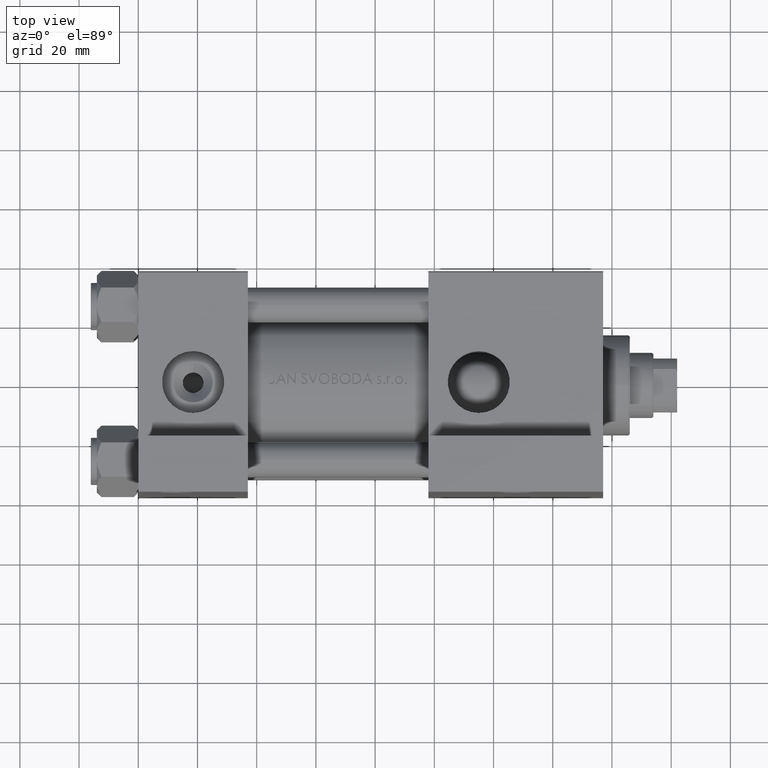
[diagram: clean part render]
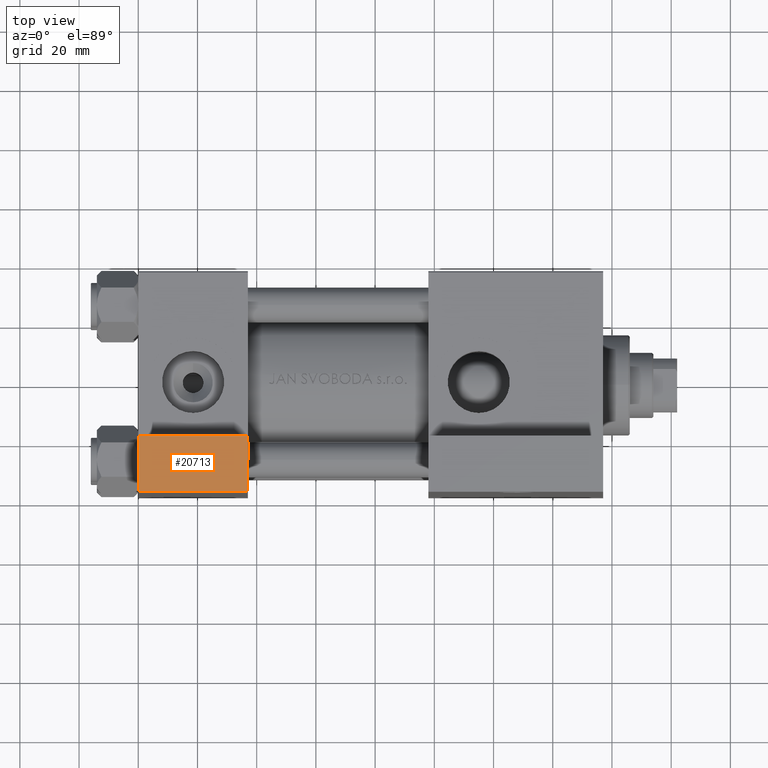
[diagram: same view with one face highlighted and labeled with its STEP entity id]
A machine part, top view. The second image highlights one B-rep face of the part: STEP entity #20713.
In plain terms, the highlighted planar face has unit normal (0, 0, 1).
Its self-contained STEP definition (entity closure, byte-faithful):
#798 = DIRECTION ( 'NONE',  ( 0.000000000000000000, -1.734723475976806848E-16, -1.000000000000000000 ) ) ;
#846 = AXIS2_PLACEMENT_3D ( 'NONE', #10742, #22199, #11649 ) ;
#1255 = EDGE_CURVE ( 'NONE', #14878, #4219, #13104, .T. ) ;
#3381 = LINE ( 'NONE', #48949, #47137 ) ;
#4219 = VERTEX_POINT ( 'NONE', #40751 ) ;
#7646 = EDGE_CURVE ( 'NONE', #4219, #17229, #26976, .T. ) ;
#7763 = CARTESIAN_POINT ( 'NONE',  ( 3.977209754999747208E-16, -63.50000000000000000, -18.50000000000000355 ) ) ;
#10742 = CARTESIAN_POINT ( 'NONE',  ( 3.977209754999747208E-16, -63.49999999999998579, 26.72167621838007889 ) ) ;
#11649 = DIRECTION ( 'NONE',  ( 0.000000000000000000, -1.734723475976806848E-16, -1.000000000000000000 ) ) ;
#13104 = LINE ( 'NONE', #26247, #16549 ) ;
#13822 = DIRECTION ( 'NONE',  ( 0.000000000000000000, -1.734723475976806848E-16, -1.000000000000000000 ) ) ;
#14406 = ORIENTED_EDGE ( 'NONE', *, *, #1255, .F. ) ;
#14731 = FACE_OUTER_BOUND ( 'NONE', #17283, .T. ) ;
#14878 = VERTEX_POINT ( 'NONE', #7763 ) ;
#16549 = VECTOR ( 'NONE', #41412, 1000.000000000000000 ) ;
#17229 = VERTEX_POINT ( 'NONE', #36997 ) ;
#17283 = EDGE_LOOP ( 'NONE', ( #14406, #47723, #45447, #31879 ) ) ;
#18075 = LINE ( 'NONE', #26057, #39754 ) ;
#19840 = EDGE_CURVE ( 'NONE', #17229, #22416, #18075, .T. ) ;
#20713 = ADVANCED_FACE ( 'NONE', ( #14731 ), #45779, .T. ) ;
#22199 = DIRECTION ( 'NONE',  ( 0.000000000000000000, -1.000000000000000000, 1.734723475976806848E-16 ) ) ;
#22416 = VERTEX_POINT ( 'NONE', #37845 ) ;
#26057 = CARTESIAN_POINT ( 'NONE',  ( 3.977209754999747208E-16, -63.50000000000000000, -37.49999999999999289 ) ) ;
#26247 = CARTESIAN_POINT ( 'NONE',  ( 3.977209754999747208E-16, -63.50000000000000000, -18.50000000000000355 ) ) ;
#26976 = LINE ( 'NONE', #27964, #31768 ) ;
#27964 = CARTESIAN_POINT ( 'NONE',  ( 37.00000000000000000, -63.49999999999998579, 26.72167621838007889 ) ) ;
#28540 = EDGE_CURVE ( 'NONE', #14878, #22416, #3381, .T. ) ;
#28811 = DIRECTION ( 'NONE',  ( -1.000000000000000000, -0.000000000000000000, -0.000000000000000000 ) ) ;
#31768 = VECTOR ( 'NONE', #798, 1000.000000000000000 ) ;
#31879 = ORIENTED_EDGE ( 'NONE', *, *, #7646, .F. ) ;
#36997 = CARTESIAN_POINT ( 'NONE',  ( 37.00000000000000000, -63.50000000000000000, -37.49999999999999289 ) ) ;
#37845 = CARTESIAN_POINT ( 'NONE',  ( 3.977209754999747208E-16, -63.50000000000000000, -37.49999999999999289 ) ) ;
#39754 = VECTOR ( 'NONE', #28811, 1000.000000000000000 ) ;
#40751 = CARTESIAN_POINT ( 'NONE',  ( 37.00000000000000000, -63.50000000000000000, -18.50000000000000355 ) ) ;
#41412 = DIRECTION ( 'NONE',  ( 1.000000000000000000, 0.000000000000000000, 0.000000000000000000 ) ) ;
#45447 = ORIENTED_EDGE ( 'NONE', *, *, #19840, .F. ) ;
#45779 = PLANE ( 'NONE',  #846 ) ;
#47137 = VECTOR ( 'NONE', #13822, 1000.000000000000000 ) ;
#47723 = ORIENTED_EDGE ( 'NONE', *, *, #28540, .T. ) ;
#48949 = CARTESIAN_POINT ( 'NONE',  ( 3.977209754999747208E-16, -63.49999999999998579, 26.72167621838007889 ) ) ;